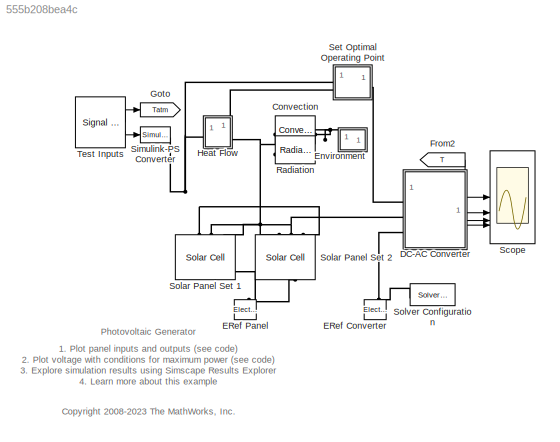
MODEL slx_555b208bea4c
KIND model
CONFIG AbsTol = auto
CONFIG EnableMultiTasking = on
CONFIG FixedStep = auto
CONFIG MaxStep = auto
CONFIG MinStep = auto
CONFIG PreLoadFcn = initial_temperature = 20;\nv_ac_nom = 110;\n\n% Properties for each of the series-connected\n% set of panels\narea = 9;\nthickness = 0.003;\ncp = 840;\n\n% Optimum operating point obtained from\n% running SolarCellPowerCurveExample\nif ~exist('voltageTable','var')\n    voltageTable = [\n      308.3333  275.0000\n      329.1667  295.8333\n      341.6667  312.5000];\n    irradianceVec =[200 500 1000];\n    temperatu...<+61ch>
CONFIG RelTol = 1e-3
CONFIG SampleTimeConstraint = Unconstrained
CONFIG SolverName = VariableStepAuto
CONFIG StartTime = 0.0
CONFIG StopTime = 60*10*6
BLOCK [Reference] Convection  REF=fl_lib/Thermal/Thermal Elements/Convective Heat
Transfer
  NameLocation = top
  SourceBlock = fl_lib/Thermal/Thermal Elements/Convective Heat\nTransfer
  SourceType = Convective Heat\nTransfer
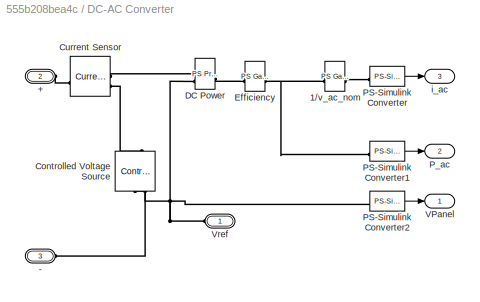
BLOCK [SubSystem] DC-AC Converter
BLOCK [PMIOPort] DC-AC Converter/+
  Port = 2
  Side = Left
BLOCK [PMIOPort] DC-AC Converter/-
  Port = 3
  Side = Left
BLOCK [Reference] DC-AC Converter/1//v_ac_nom  REF=fl_ps_legacy_lib/Legacy Physical
Signals/Functions/PS Gain
  SourceBlock = fl_ps_legacy_lib/Legacy Physical\nSignals/Functions/PS Gain
  SourceType = PS Gain
BLOCK [Reference] DC-AC Converter/Controlled Voltage Source  REF=fl_lib/Electrical/Electrical Sources/Controlled Voltage
Source
  NameLocation = left
  SourceBlock = fl_lib/Electrical/Electrical Sources/Controlled Voltage\nSource
  SourceType = Controlled Voltage\nSource
BLOCK [Reference] DC-AC Converter/Current Sensor  REF=fl_lib/Electrical/Electrical Sensors/Current Sensor
  SourceBlock = fl_lib/Electrical/Electrical Sensors/Current Sensor
  SourceType = Current Sensor
BLOCK [Reference] DC-AC Converter/DC Power  REF=fl_ps_legacy_lib/Legacy Physical
Signals/Functions/PS Product
  SourceBlock = fl_ps_legacy_lib/Legacy Physical\nSignals/Functions/PS Product
  SourceType = PS Product
BLOCK [Reference] DC-AC Converter/Efficiency  REF=fl_ps_legacy_lib/Legacy Physical
Signals/Functions/PS Gain
  AttributesFormatString = %<gain>
  SourceBlock = fl_ps_legacy_lib/Legacy Physical\nSignals/Functions/PS Gain
  SourceType = PS Gain
BLOCK [Reference] DC-AC Converter/PS-Simulink Converter  REF=nesl_utility/PS-Simulink
Converter
  NameLocation = top
  SourceBlock = nesl_utility/PS-Simulink\nConverter
  SourceType = PS-Simulink\nConverter
BLOCK [Reference] DC-AC Converter/PS-Simulink Converter1  REF=nesl_utility/PS-Simulink
Converter
  NameLocation = top
  SourceBlock = nesl_utility/PS-Simulink\nConverter
  SourceType = PS-Simulink\nConverter
BLOCK [Reference] DC-AC Converter/PS-Simulink Converter2  REF=nesl_utility/PS-Simulink
Converter
  NameLocation = top
  SourceBlock = nesl_utility/PS-Simulink\nConverter
  SourceType = PS-Simulink\nConverter
BLOCK [Outport] DC-AC Converter/P_ac
  Port = 2
  VectorParamsAs1DForOutWhenUnconnected = off
BLOCK [Outport] DC-AC Converter/VPanel
  VectorParamsAs1DForOutWhenUnconnected = off
BLOCK [PMIOPort] DC-AC Converter/Vref
  Side = Left
BLOCK [Outport] DC-AC Converter/i_ac
  Port = 3
  VectorParamsAs1DForOutWhenUnconnected = off
BLOCK [Reference] ERef Converter  REF=fl_lib/Electrical/Electrical Elements/Electrical Reference
  NameLocation = left
  SourceBlock = fl_lib/Electrical/Electrical Elements/Electrical Reference
  SourceType = Electrical Reference
BLOCK [Reference] ERef Panel  REF=fl_lib/Electrical/Electrical Elements/Electrical Reference
  NameLocation = left
  SourceBlock = fl_lib/Electrical/Electrical Elements/Electrical Reference
  SourceType = Electrical Reference
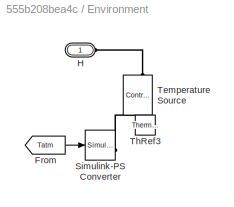
BLOCK [SubSystem] Environment
BLOCK [From] Environment/From
  GotoTag = Tatm
  TagVisibility = global
BLOCK [PMIOPort] Environment/H
  Side = Left
BLOCK [Reference] Environment/Simulink-PS Converter  REF=nesl_utility/Simulink-PS
Converter
  SourceBlock = nesl_utility/Simulink-PS\nConverter
  SourceType = Simulink-PS\nConverter
BLOCK [Reference] Environment/Temperature Source  REF=fl_lib/Thermal/Thermal Sources/Controlled
Temperature Source
  NameLocation = right
  SourceBlock = fl_lib/Thermal/Thermal Sources/Controlled\nTemperature Source
  SourceType = Controlled\nTemperature Source
BLOCK [Reference] Environment/ThRef3  REF=fl_lib/Thermal/Thermal Elements/Thermal Reference
  NameLocation = right
  SourceBlock = fl_lib/Thermal/Thermal Elements/Thermal Reference
  SourceType = Thermal Reference
BLOCK [From] From2
  GotoTag = T
  TagVisibility = global
BLOCK [Goto] Goto
  GotoTag = Tatm
  TagVisibility = global
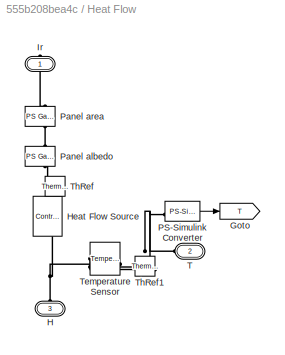
BLOCK [SubSystem] Heat Flow
BLOCK [Goto] Heat Flow/Goto
  GotoTag = T
  TagVisibility = global
BLOCK [PMIOPort] Heat Flow/H
  NameLocation = left
  Port = 3
  Side = Left
BLOCK [Reference] Heat Flow/Heat Flow Source  REF=fl_lib/Thermal/Thermal Sources/Controlled Heat Flow
Rate Source
  NameLocation = left
  SourceBlock = fl_lib/Thermal/Thermal Sources/Controlled Heat Flow\nRate Source
  SourceType = Controlled Heat Flow\nRate Source
BLOCK [PMIOPort] Heat Flow/Ir
  NameLocation = right
  Side = Right
BLOCK [Reference] Heat Flow/PS-Simulink Converter  REF=nesl_utility/PS-Simulink
Converter
  SourceBlock = nesl_utility/PS-Simulink\nConverter
  SourceType = PS-Simulink\nConverter
BLOCK [Reference] Heat Flow/Panel albedo  REF=fl_ps_legacy_lib/Legacy Physical
Signals/Functions/PS Gain
  NameLocation = left
  SourceBlock = fl_ps_legacy_lib/Legacy Physical\nSignals/Functions/PS Gain
  SourceType = PS Gain
BLOCK [Reference] Heat Flow/Panel area  REF=fl_ps_legacy_lib/Legacy Physical
Signals/Functions/PS Gain
  NameLocation = left
  SourceBlock = fl_ps_legacy_lib/Legacy Physical\nSignals/Functions/PS Gain
  SourceType = PS Gain
BLOCK [PMIOPort] Heat Flow/T
  Port = 2
  Side = Left
BLOCK [Reference] Heat Flow/Temperature Sensor  REF=fl_lib/Thermal/Thermal Sensors/Temperature Sensor
  SourceBlock = fl_lib/Thermal/Thermal Sensors/Temperature Sensor
  SourceType = Temperature Sensor
BLOCK [Reference] Heat Flow/ThRef  REF=fl_lib/Thermal/Thermal Elements/Thermal Reference
  NameLocation = right
  SourceBlock = fl_lib/Thermal/Thermal Elements/Thermal Reference
  SourceType = Thermal Reference
BLOCK [Reference] Heat Flow/ThRef1  REF=fl_lib/Thermal/Thermal Elements/Thermal Reference
  NameLocation = top
  SourceBlock = fl_lib/Thermal/Thermal Elements/Thermal Reference
  SourceType = Thermal Reference
BLOCK [Reference] Radiation  REF=fl_lib/Thermal/Thermal Elements/Radiative Heat
Transfer
  SourceBlock = fl_lib/Thermal/Thermal Elements/Radiative Heat\nTransfer
  SourceType = Radiative Heat\nTransfer
BLOCK [Scope] Scope
  Floating = off
  NumInputPorts = 4
  ScopeSpecificationString = Simulink.scopes.TimeScopeBlockCfg('CurrentConfiguration', extmgr.ConfigurationSet(extmgr.Configuration('Core','General UI',true),extmgr.Configuration('Core','Source UI',true),extmgr.Configuration('Sources','WiredSimulink',true,'DataLoggingVariableName','ScopeData4','DataLoggingSaveFormat','StructureWithTime','DataLoggingMaxPoints','200000','DataLoggingLimitDataPoints',true,'DataLoggingDecimation',...<+3682ch>
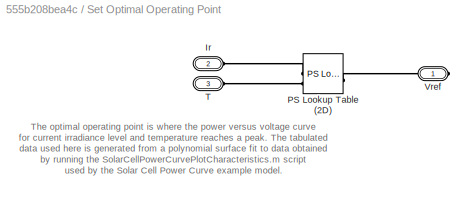
BLOCK [SubSystem] Set Optimal Operating Point
  NameLocation = top
BLOCK [PMIOPort] Set Optimal Operating Point/Ir
  NameLocation = top
  Port = 2
  Side = Left
BLOCK [Reference] Set Optimal Operating Point/PS Lookup Table (2D)  REF=fl_ps_legacy_lib/Legacy Physical
Signals/Lookup Tables/PS Lookup Table (2D)
  SourceBlock = fl_ps_legacy_lib/Legacy Physical\nSignals/Lookup Tables/PS Lookup Table (2D)
  SourceType = PS Lookup Table (2D)
BLOCK [PMIOPort] Set Optimal Operating Point/T
  Port = 3
  Side = Left
BLOCK [PMIOPort] Set Optimal Operating Point/Vref
  Side = Right
BLOCK [Reference] Simulink-PS Converter  REF=nesl_utility/Simulink-PS
Converter
  SourceBlock = nesl_utility/Simulink-PS\nConverter
  SourceType = Simulink-PS\nConverter
BLOCK [Reference] Solar Panel Set 1  REF=ee_lib/Sources/Solar Cell
  NameLocation = left
  SourceBlock = ee_lib/Sources/Solar Cell
  SourceType = Solar Cell
BLOCK [Reference] Solar Panel Set 2  REF=ee_lib/Sources/Solar Cell
  NameLocation = right
  SourceBlock = ee_lib/Sources/Solar Cell
  SourceType = Solar Cell
BLOCK [Reference] Solver Configuration  REF=nesl_utility/Solver
Configuration
  SourceBlock = nesl_utility/Solver\nConfiguration
  SourceType = Solver\nConfiguration
BLOCK [Reference] Test Inputs  REF=SignalEditorBlockLib/Signal Editor
  SourceBlock = SignalEditorBlockLib/Signal Editor
  SourceType = SignalEditor
  UserDataPersistent = on
ANNOTATION (root): 1. Plot panel inputs and outputs ( see code ) 2. Plot voltage with conditions for maximum power ( see code ) 3. Explore simulation results using Simscape Results Explorer 4. Learn more about this example
ANNOTATION (root): <copyright redacted>
ANNOTATION (root): Photovoltaic Generator
ANNOTATION Set Optimal Operating Point: The optimal operating point is where the power versus voltage curve for current irradiance level and temperature reaches a peak. The tabulated data used here is generated from a polynomial surface fit to data obtained by running the SolarCellPowerCurvePlotCharacteristics.m script used by the Solar Cell Power Curve example model.
LINE DC-AC Converter/PS-Simulink Converter1:1 -> DC-AC Converter/P_ac:1
LINE DC-AC Converter/PS-Simulink Converter2:1 -> DC-AC Converter/VPanel:1
LINE DC-AC Converter/PS-Simulink Converter:1 -> DC-AC Converter/i_ac:1
LINE DC-AC Converter:1 -> Scope:2
LINE DC-AC Converter:2 -> Scope:3
LINE DC-AC Converter:3 -> Scope:4
LINE Environment/From:1 -> Environment/Simulink-PS Converter:1
LINE From2:1 -> Scope:1
LINE Heat Flow/PS-Simulink Converter:1 -> Heat Flow/Goto:1
LINE Test Inputs:1 -> Goto:1
LINE Test Inputs:2 -> Simulink-PS Converter:1
PNET net1: Convection:LConn1 -- Heat Flow:LConn2 -- Radiation:LConn1 -- Solar Panel Set 1:LConn3 -- Solar Panel Set 2:LConn3
PNET net2: Convection:RConn1 -- Environment:LConn1 -- Radiation:RConn1
PLINE DC-AC Converter/+:RConn1 -- DC-AC Converter/Current Sensor:LConn1
PLINE DC-AC Converter/-:RConn1 -- DC-AC Converter/Controlled Voltage Source:RConn2
PNET net3: DC-AC Converter/1//v_ac_nom:LConn1 -- DC-AC Converter/Efficiency:RConn1 -- DC-AC Converter/PS-Simulink Converter1:LConn1
PLINE DC-AC Converter/1//v_ac_nom:RConn1 -- DC-AC Converter/PS-Simulink Converter:LConn1
PLINE DC-AC Converter/Controlled Voltage Source:LConn1 -- DC-AC Converter/Current Sensor:RConn2
PNET net4: DC-AC Converter/Controlled Voltage Source:RConn1 -- DC-AC Converter/DC Power:LConn2 -- DC-AC Converter/PS-Simulink Converter2:LConn1 -- DC-AC Converter/Vref:RConn1
PLINE DC-AC Converter/Current Sensor:RConn1 -- DC-AC Converter/DC Power:LConn1
PLINE DC-AC Converter/DC Power:RConn1 -- DC-AC Converter/Efficiency:LConn1
PLINE DC-AC Converter:LConn1 -- Set Optimal Operating Point:RConn1
PNET net5: DC-AC Converter:LConn2 -- Solar Panel Set 1:LConn2 -- Solar Panel Set 2:LConn2
PNET net6: DC-AC Converter:LConn3 -- ERef Converter:LConn1 -- Solver Configuration:RConn1
PNET net7: ERef Panel:LConn1 -- Solar Panel Set 1:RConn1 -- Solar Panel Set 2:RConn1
PLINE Environment/H:RConn1 -- Environment/Temperature Source:LConn1
PLINE Environment/Simulink-PS Converter:RConn1 -- Environment/Temperature Source:RConn1
PLINE Environment/Temperature Source:RConn2 -- Environment/ThRef3:LConn1
PNET net8: Heat Flow/H:RConn1 -- Heat Flow/Heat Flow Source:LConn1 -- Heat Flow/Temperature Sensor:LConn1
PLINE Heat Flow/Heat Flow Source:RConn1 -- Heat Flow/Panel albedo:RConn1
PLINE Heat Flow/Heat Flow Source:RConn2 -- Heat Flow/ThRef:LConn1
PLINE Heat Flow/Ir:RConn1 -- Heat Flow/Panel area:LConn1
PNET net9: Heat Flow/PS-Simulink Converter:LConn1 -- Heat Flow/T:RConn1 -- Heat Flow/Temperature Sensor:RConn2
PLINE Heat Flow/Panel albedo:LConn1 -- Heat Flow/Panel area:RConn1
PLINE Heat Flow/Temperature Sensor:RConn1 -- Heat Flow/ThRef1:LConn1
PLINE Heat Flow:LConn1 -- Set Optimal Operating Point:LConn2
PNET net10: Heat Flow:RConn1 -- Set Optimal Operating Point:LConn1 -- Simulink-PS Converter:RConn1 -- Solar Panel Set 1:LConn1 -- Solar Panel Set 2:LConn1
PLINE Set Optimal Operating Point/Ir:RConn1 -- Set Optimal Operating Point/PS Lookup Table (2D):LConn1
PLINE Set Optimal Operating Point/PS Lookup Table (2D):LConn2 -- Set Optimal Operating Point/T:RConn1
PLINE Set Optimal Operating Point/PS Lookup Table (2D):RConn1 -- Set Optimal Operating Point/Vref:RConn1
note: PNET lines group multi-terminal physical nets as a canonical sorted terminal list (undirected conserving connections); 2-terminal nets keep the pairwise PLINE form
